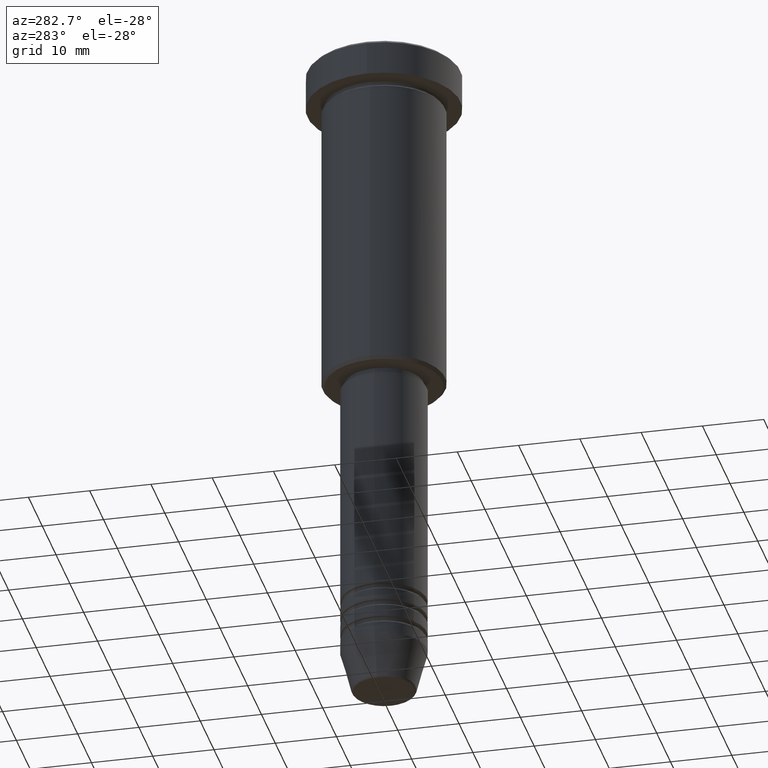
[diagram: clean part render]
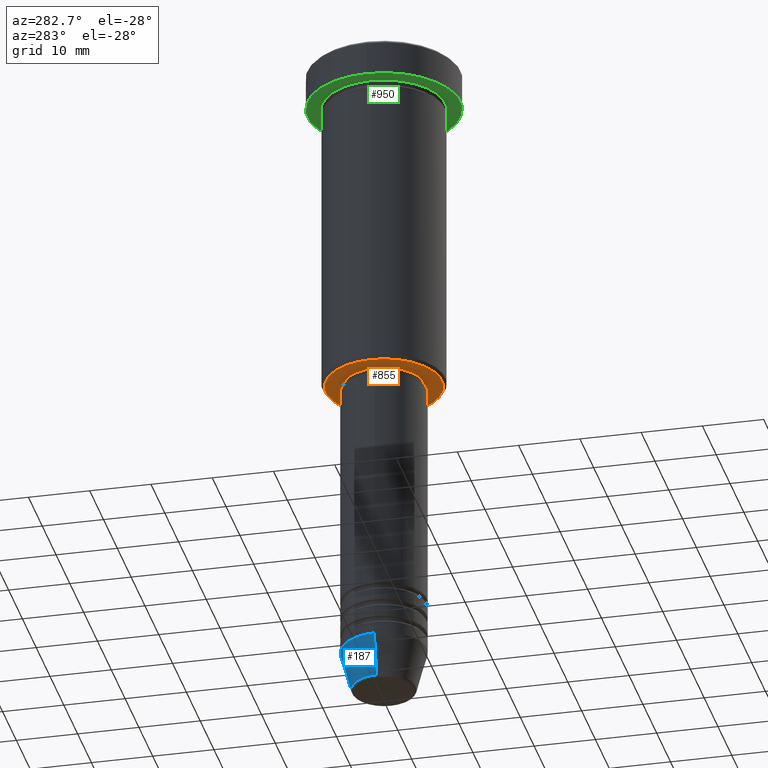
[diagram: same view with three faces highlighted in distinct colors, each labeled with its STEP entity id]
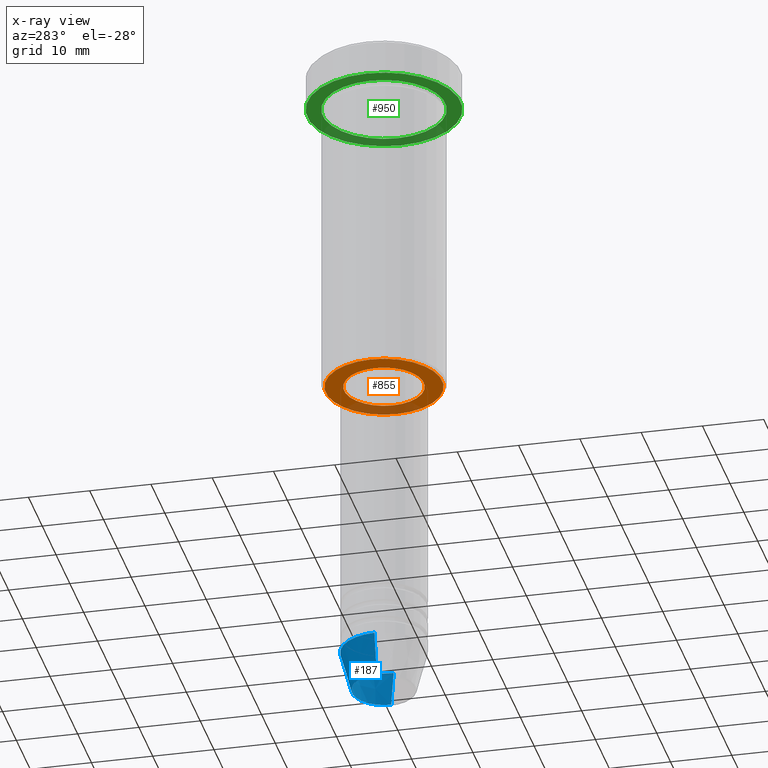
[diagram: x-ray of the same camera — body ghosted, the three highlighted faces saturated]
A machine part, auxiliary view with three faces highlighted in distinct colors.
The next image is the same camera in x-ray (body ghosted, the three faces saturated) — at least one of them is partly hidden behind the body in this view.
Their STEP definitions:

[orange] entity #855 — the highlighted planar face has unit normal (0, 0, -1).
#9 = AXIS2_PLACEMENT_3D ( 'NONE', #437, #442, #174 ) ;
#25 = VERTEX_POINT ( 'NONE', #702 ) ;
#98 = DIRECTION ( 'NONE',  ( -1.000000000000000000, 0.000000000000000000, 0.000000000000000000 ) ) ;
#117 = CIRCLE ( 'NONE', #671, 6.500000000000000000 ) ;
#148 = EDGE_CURVE ( 'NONE', #541, #1117, #410, .T. ) ;
#164 = EDGE_CURVE ( 'NONE', #1117, #541, #1128, .T. ) ;
#169 = FACE_OUTER_BOUND ( 'NONE', #826, .T. ) ;
#174 = DIRECTION ( 'NONE',  ( -1.000000000000000000, 0.000000000000000000, -0.000000000000000000 ) ) ;
#279 = DIRECTION ( 'NONE',  ( -0.000000000000000000, -0.000000000000000000, 1.000000000000000000 ) ) ;
#298 = CIRCLE ( 'NONE', #976, 6.500000000000000000 ) ;
#330 = CARTESIAN_POINT ( 'NONE',  ( 9.499999999999980460, 0.000000000000000000, -55.99999999999999289 ) ) ;
#368 = FACE_BOUND ( 'NONE', #403, .T. ) ;
#381 = DIRECTION ( 'NONE',  ( 0.000000000000000000, 0.000000000000000000, -1.000000000000000000 ) ) ;
#403 = EDGE_LOOP ( 'NONE', ( #563, #625 ) ) ;
#410 = CIRCLE ( 'NONE', #524, 9.499999999999980460 ) ;
#437 = CARTESIAN_POINT ( 'NONE',  ( 0.000000000000000000, 10.00000000000000000, -55.99999999999999289 ) ) ;
#442 = DIRECTION ( 'NONE',  ( 0.000000000000000000, 0.000000000000000000, -1.000000000000000000 ) ) ;
#452 = EDGE_CURVE ( 'NONE', #25, #754, #117, .T. ) ;
#456 = PLANE ( 'NONE',  #9 ) ;
#465 = CARTESIAN_POINT ( 'NONE',  ( 0.000000000000000000, 0.000000000000000000, -55.99999999999999289 ) ) ;
#519 = DIRECTION ( 'NONE',  ( 1.000000000000000000, 0.000000000000000000, 0.000000000000000000 ) ) ;
#524 = AXIS2_PLACEMENT_3D ( 'NONE', #639, #381, #98 ) ;
#541 = VERTEX_POINT ( 'NONE', #330 ) ;
#563 = ORIENTED_EDGE ( 'NONE', *, *, #452, .T. ) ;
#615 = CARTESIAN_POINT ( 'NONE',  ( 0.000000000000000000, 0.000000000000000000, -55.99999999999999289 ) ) ;
#618 = AXIS2_PLACEMENT_3D ( 'NONE', #720, #731, #812 ) ;
#625 = ORIENTED_EDGE ( 'NONE', *, *, #1021, .T. ) ;
#639 = CARTESIAN_POINT ( 'NONE',  ( 0.000000000000000000, 0.000000000000000000, -55.99999999999999289 ) ) ;
#643 = DIRECTION ( 'NONE',  ( 1.000000000000000000, 0.000000000000000000, 0.000000000000000000 ) ) ;
#671 = AXIS2_PLACEMENT_3D ( 'NONE', #615, #701, #519 ) ;
#701 = DIRECTION ( 'NONE',  ( -0.000000000000000000, -0.000000000000000000, 1.000000000000000000 ) ) ;
#702 = CARTESIAN_POINT ( 'NONE',  ( 6.500000000000000000, 0.000000000000000000, -55.99999999999999289 ) ) ;
#720 = CARTESIAN_POINT ( 'NONE',  ( 0.000000000000000000, 0.000000000000000000, -55.99999999999999289 ) ) ;
#731 = DIRECTION ( 'NONE',  ( 0.000000000000000000, 0.000000000000000000, -1.000000000000000000 ) ) ;
#754 = VERTEX_POINT ( 'NONE', #1041 ) ;
#812 = DIRECTION ( 'NONE',  ( -1.000000000000000000, 0.000000000000000000, 0.000000000000000000 ) ) ;
#826 = EDGE_LOOP ( 'NONE', ( #1097, #1144 ) ) ;
#855 = ADVANCED_FACE ( 'NONE', ( #169, #368 ), #456, .T. ) ;
#976 = AXIS2_PLACEMENT_3D ( 'NONE', #465, #279, #643 ) ;
#1021 = EDGE_CURVE ( 'NONE', #754, #25, #298, .T. ) ;
#1041 = CARTESIAN_POINT ( 'NONE',  ( -6.500000000000000000, 7.960204194457795477E-16, -55.99999999999999289 ) ) ;
#1097 = ORIENTED_EDGE ( 'NONE', *, *, #148, .T. ) ;
#1112 = CARTESIAN_POINT ( 'NONE',  ( -9.499999999999980460, 1.194030629168668286E-15, -55.99999999999999289 ) ) ;
#1117 = VERTEX_POINT ( 'NONE', #1112 ) ;
#1128 = CIRCLE ( 'NONE', #618, 9.499999999999980460 ) ;
#1144 = ORIENTED_EDGE ( 'NONE', *, *, #164, .T. ) ;

[blue] entity #187 — the highlighted conical surface has half-angle 15 deg.
#34 = LINE ( 'NONE', #667, #1131 ) ;
#87 = CARTESIAN_POINT ( 'NONE',  ( -5.223655072137193045, 7.484830028987060174E-16, -110.6294095225512564 ) ) ;
#88 = DIRECTION ( 'NONE',  ( -0.000000000000000000, -0.000000000000000000, 1.000000000000000000 ) ) ;
#91 = DIRECTION ( 'NONE',  ( 0.2588190451025213501, 0.000000000000000000, 0.9659258262890680902 ) ) ;
#156 = DIRECTION ( 'NONE',  ( -0.000000000000000000, -0.000000000000000000, 1.000000000000000000 ) ) ;
#187 = ADVANCED_FACE ( 'NONE', ( #996 ), #507, .T. ) ;
#224 = CARTESIAN_POINT ( 'NONE',  ( -7.000000000000000000, 8.572527594031473190E-16, -104.0000000000000142 ) ) ;
#246 = DIRECTION ( 'NONE',  ( 1.000000000000000000, 0.000000000000000000, 0.000000000000000000 ) ) ;
#294 = AXIS2_PLACEMENT_3D ( 'NONE', #919, #88, #632 ) ;
#301 = CARTESIAN_POINT ( 'NONE',  ( 7.000000000000000000, 0.000000000000000000, -104.0000000000000142 ) ) ;
#308 = CARTESIAN_POINT ( 'NONE',  ( 5.223655072137193045, 0.000000000000000000, -110.6294095225512564 ) ) ;
#327 = EDGE_CURVE ( 'NONE', #688, #367, #34, .T. ) ;
#342 = DIRECTION ( 'NONE',  ( 1.000000000000000000, 0.000000000000000000, 0.000000000000000000 ) ) ;
#354 = AXIS2_PLACEMENT_3D ( 'NONE', #609, #156, #246 ) ;
#367 = VERTEX_POINT ( 'NONE', #224 ) ;
#374 = CIRCLE ( 'NONE', #354, 7.000000000000000000 ) ;
#411 = CIRCLE ( 'NONE', #1009, 5.223655072137193045 ) ;
#416 = EDGE_CURVE ( 'NONE', #1146, #367, #374, .T. ) ;
#421 = EDGE_LOOP ( 'NONE', ( #931, #446, #948, #1172 ) ) ;
#446 = ORIENTED_EDGE ( 'NONE', *, *, #327, .T. ) ;
#454 = VECTOR ( 'NONE', #91, 1000.000000000000000 ) ;
#501 = EDGE_CURVE ( 'NONE', #616, #688, #411, .T. ) ;
#507 = CONICAL_SURFACE ( 'NONE', #294, 7.000000000000000000, 0.2617993877991500740 ) ;
#550 = CARTESIAN_POINT ( 'NONE',  ( 7.000000000000000000, 0.000000000000000000, -104.0000000000000142 ) ) ;
#609 = CARTESIAN_POINT ( 'NONE',  ( 0.000000000000000000, 0.000000000000000000, -104.0000000000000142 ) ) ;
#616 = VERTEX_POINT ( 'NONE', #308 ) ;
#632 = DIRECTION ( 'NONE',  ( 1.000000000000000000, 0.000000000000000000, 0.000000000000000000 ) ) ;
#667 = CARTESIAN_POINT ( 'NONE',  ( -7.000000000000000000, 8.572527594031473190E-16, -104.0000000000000142 ) ) ;
#688 = VERTEX_POINT ( 'NONE', #87 ) ;
#695 = CARTESIAN_POINT ( 'NONE',  ( 0.000000000000000000, 0.000000000000000000, -110.6294095225512564 ) ) ;
#872 = DIRECTION ( 'NONE',  ( -0.000000000000000000, -0.000000000000000000, 1.000000000000000000 ) ) ;
#919 = CARTESIAN_POINT ( 'NONE',  ( 0.000000000000000000, 0.000000000000000000, -104.0000000000000142 ) ) ;
#931 = ORIENTED_EDGE ( 'NONE', *, *, #501, .T. ) ;
#948 = ORIENTED_EDGE ( 'NONE', *, *, #416, .F. ) ;
#965 = EDGE_CURVE ( 'NONE', #616, #1146, #1086, .T. ) ;
#996 = FACE_OUTER_BOUND ( 'NONE', #421, .T. ) ;
#1009 = AXIS2_PLACEMENT_3D ( 'NONE', #695, #872, #342 ) ;
#1028 = DIRECTION ( 'NONE',  ( -0.2588190451025213501, 3.169619151431772337E-17, 0.9659258262890680902 ) ) ;
#1086 = LINE ( 'NONE', #550, #454 ) ;
#1131 = VECTOR ( 'NONE', #1028, 1000.000000000000000 ) ;
#1146 = VERTEX_POINT ( 'NONE', #301 ) ;
#1172 = ORIENTED_EDGE ( 'NONE', *, *, #965, .F. ) ;

[green] entity #950 — the highlighted planar face has unit normal (0, 0, -1).
#1 = EDGE_CURVE ( 'NONE', #10, #141, #544, .T. ) ;
#10 = VERTEX_POINT ( 'NONE', #798 ) ;
#31 = ORIENTED_EDGE ( 'NONE', *, *, #555, .F. ) ;
#37 = VERTEX_POINT ( 'NONE', #540 ) ;
#51 = EDGE_LOOP ( 'NONE', ( #122, #683 ) ) ;
#56 = DIRECTION ( 'NONE',  ( 1.000000000000000000, 0.000000000000000000, 0.000000000000000000 ) ) ;
#71 = DIRECTION ( 'NONE',  ( -0.000000000000000000, -0.000000000000000000, 1.000000000000000000 ) ) ;
#83 = DIRECTION ( 'NONE',  ( -0.000000000000000000, -0.000000000000000000, 1.000000000000000000 ) ) ;
#120 = AXIS2_PLACEMENT_3D ( 'NONE', #1066, #255, #795 ) ;
#122 = ORIENTED_EDGE ( 'NONE', *, *, #1158, .T. ) ;
#141 = VERTEX_POINT ( 'NONE', #561 ) ;
#166 = DIRECTION ( 'NONE',  ( -1.000000000000000000, 0.000000000000000000, 0.000000000000000000 ) ) ;
#180 = FACE_OUTER_BOUND ( 'NONE', #857, .T. ) ;
#255 = DIRECTION ( 'NONE',  ( 0.000000000000000000, 0.000000000000000000, -1.000000000000000000 ) ) ;
#262 = AXIS2_PLACEMENT_3D ( 'NONE', #958, #867, #56 ) ;
#282 = CIRCLE ( 'NONE', #935, 12.50000000000000000 ) ;
#352 = DIRECTION ( 'NONE',  ( 1.000000000000000000, 0.000000000000000000, 0.000000000000000000 ) ) ;
#356 = CIRCLE ( 'NONE', #262, 12.50000000000000000 ) ;
#358 = VERTEX_POINT ( 'NONE', #1022 ) ;
#380 = CARTESIAN_POINT ( 'NONE',  ( 0.000000000000000000, 0.000000000000000000, -5.999999999999996447 ) ) ;
#510 = AXIS2_PLACEMENT_3D ( 'NONE', #380, #739, #661 ) ;
#523 = PLANE ( 'NONE',  #120 ) ;
#540 = CARTESIAN_POINT ( 'NONE',  ( -12.50000000000000000, 1.530808498934191521E-15, -5.999999999999996447 ) ) ;
#544 = CIRCLE ( 'NONE', #690, 10.00000000000000000 ) ;
#555 = EDGE_CURVE ( 'NONE', #358, #37, #356, .T. ) ;
#561 = CARTESIAN_POINT ( 'NONE',  ( -10.00000000000000000, 0.000000000000000000, -5.999999999999996447 ) ) ;
#597 = ORIENTED_EDGE ( 'NONE', *, *, #910, .F. ) ;
#626 = CARTESIAN_POINT ( 'NONE',  ( 0.000000000000000000, 0.000000000000000000, -5.999999999999996447 ) ) ;
#661 = DIRECTION ( 'NONE',  ( -1.000000000000000000, 0.000000000000000000, 0.000000000000000000 ) ) ;
#683 = ORIENTED_EDGE ( 'NONE', *, *, #1, .T. ) ;
#690 = AXIS2_PLACEMENT_3D ( 'NONE', #782, #71, #166 ) ;
#722 = FACE_BOUND ( 'NONE', #51, .T. ) ;
#739 = DIRECTION ( 'NONE',  ( -0.000000000000000000, -0.000000000000000000, 1.000000000000000000 ) ) ;
#782 = CARTESIAN_POINT ( 'NONE',  ( 0.000000000000000000, 0.000000000000000000, -5.999999999999996447 ) ) ;
#795 = DIRECTION ( 'NONE',  ( -1.000000000000000000, 0.000000000000000000, -0.000000000000000000 ) ) ;
#798 = CARTESIAN_POINT ( 'NONE',  ( 10.00000000000000000, 1.224646799147353256E-15, -5.999999999999996447 ) ) ;
#857 = EDGE_LOOP ( 'NONE', ( #31, #597 ) ) ;
#867 = DIRECTION ( 'NONE',  ( -0.000000000000000000, -0.000000000000000000, 1.000000000000000000 ) ) ;
#898 = CIRCLE ( 'NONE', #510, 10.00000000000000000 ) ;
#910 = EDGE_CURVE ( 'NONE', #37, #358, #282, .T. ) ;
#935 = AXIS2_PLACEMENT_3D ( 'NONE', #626, #83, #352 ) ;
#950 = ADVANCED_FACE ( 'NONE', ( #722, #180 ), #523, .T. ) ;
#958 = CARTESIAN_POINT ( 'NONE',  ( 0.000000000000000000, 0.000000000000000000, -5.999999999999996447 ) ) ;
#1022 = CARTESIAN_POINT ( 'NONE',  ( 12.50000000000000000, 0.000000000000000000, -5.999999999999996447 ) ) ;
#1066 = CARTESIAN_POINT ( 'NONE',  ( 0.000000000000000000, 12.50000000000000000, -5.999999999999996447 ) ) ;
#1158 = EDGE_CURVE ( 'NONE', #141, #10, #898, .T. ) ;